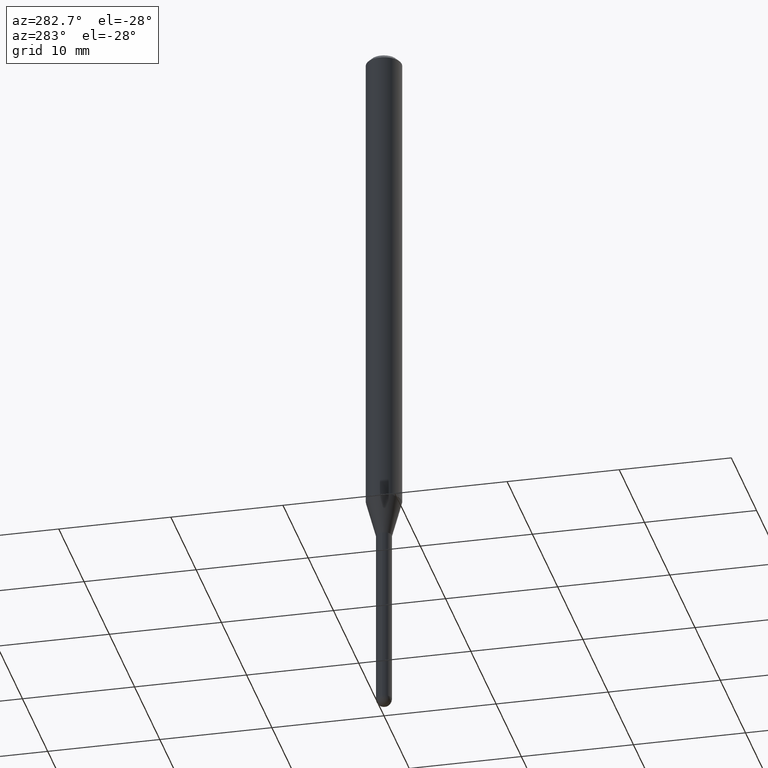
[diagram: clean part render]
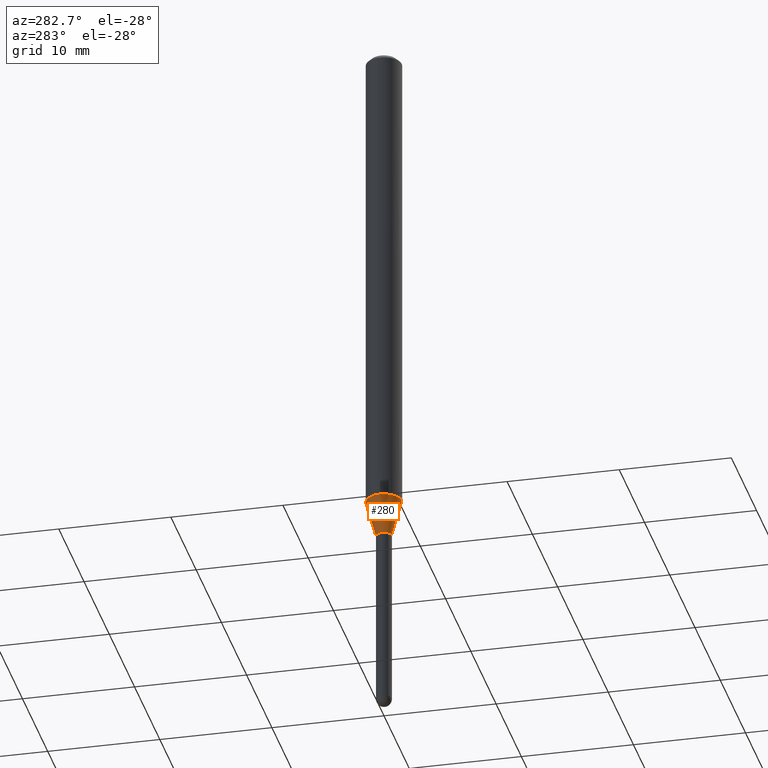
[diagram: same view with one face highlighted and labeled with its STEP entity id]
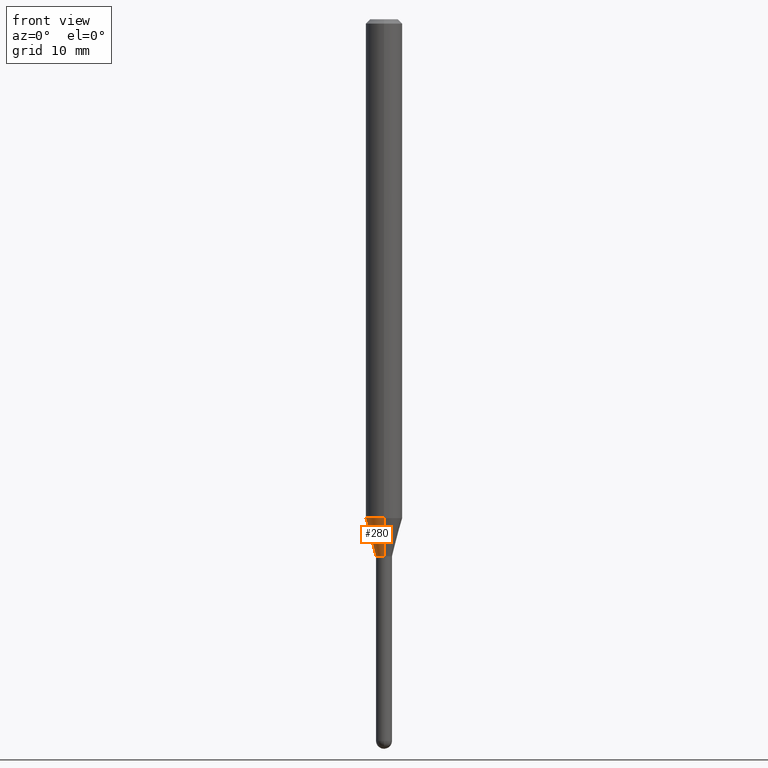
[diagram: same view with one face highlighted and labeled with its STEP entity id]
A machine part, auxiliary view. The second image highlights one B-rep face of the part: STEP entity #280.
A second angle (front view) of the same face is appended — the face is thin or edge-on in the first view.
In plain terms, the highlighted conical surface has half-angle 15 deg.
Its self-contained STEP definition (entity closure, byte-faithful):
#17 = VECTOR ( 'NONE', #446, 39.37007874015748143 ) ;
#18 = LINE ( 'NONE', #286, #52 ) ;
#34 = AXIS2_PLACEMENT_3D ( 'NONE', #437, #399, #39 ) ;
#39 = DIRECTION ( 'NONE',  ( -6.982962677686265922E-15, -1.000000000000000000, 0.000000000000000000 ) ) ;
#49 = DIRECTION ( 'NONE',  ( -6.982962677686265922E-15, -1.000000000000000000, 4.370956789862821150E-15 ) ) ;
#50 = VERTEX_POINT ( 'NONE', #301 ) ;
#52 = VECTOR ( 'NONE', #178, 39.37007874015748854 ) ;
#61 = CONICAL_SURFACE ( 'NONE', #34, 0.02749999999999992034, 0.2617993877991577900 ) ;
#84 = CARTESIAN_POINT ( 'NONE',  ( 4.499652193453970198E-29, -6.424340571078891610E-15, -1.840000000000000080 ) ) ;
#94 = ORIENTED_EDGE ( 'NONE', *, *, #153, .T. ) ;
#117 = ORIENTED_EDGE ( 'NONE', *, *, #157, .T. ) ;
#127 = DIRECTION ( 'NONE',  ( -6.982962677686265922E-15, -1.000000000000000000, 0.000000000000000000 ) ) ;
#140 = DIRECTION ( 'NONE',  ( -2.445463148616288200E-29, 3.491489440803745492E-15, 1.000000000000000000 ) ) ;
#153 = EDGE_CURVE ( 'NONE', #395, #482, #18, .T. ) ;
#155 = CIRCLE ( 'NONE', #271, 0.06250000000000000000 ) ;
#157 = EDGE_CURVE ( 'NONE', #350, #395, #434, .T. ) ;
#178 = DIRECTION ( 'NONE',  ( -1.807323732225381021E-15, -0.2588190451025254579, 0.9659258262890669799 ) ) ;
#189 = CARTESIAN_POINT ( 'NONE',  ( -4.364351673553500570E-16, -0.06250000000000599520, -1.709378221735093017 ) ) ;
#199 = EDGE_CURVE ( 'NONE', #350, #50, #474, .T. ) ;
#271 = AXIS2_PLACEMENT_3D ( 'NONE', #413, #140, #49 ) ;
#276 = FACE_OUTER_BOUND ( 'NONE', #409, .T. ) ;
#280 = ADVANCED_FACE ( 'NONE', ( #276 ), #61, .T. ) ;
#286 = CARTESIAN_POINT ( 'NONE',  ( -1.920314736363267384E-16, -0.02750000000000634576, -1.840000000000000080 ) ) ;
#301 = CARTESIAN_POINT ( 'NONE',  ( 4.440892098501041300E-16, 0.06249999999999401173, -1.709378221735093684 ) ) ;
#321 = CARTESIAN_POINT ( 'NONE',  ( 1.953992523340719502E-16, 0.02749999999999349493, -1.840000000000000080 ) ) ;
#329 = AXIS2_PLACEMENT_3D ( 'NONE', #84, #488, #127 ) ;
#350 = VERTEX_POINT ( 'NONE', #500 ) ;
#371 = EDGE_CURVE ( 'NONE', #50, #482, #155, .T. ) ;
#395 = VERTEX_POINT ( 'NONE', #459 ) ;
#399 = DIRECTION ( 'NONE',  ( -2.445463148616288200E-29, 3.491489440803745492E-15, 1.000000000000000000 ) ) ;
#403 = ORIENTED_EDGE ( 'NONE', *, *, #371, .F. ) ;
#409 = EDGE_LOOP ( 'NONE', ( #485, #117, #94, #403 ) ) ;
#413 = CARTESIAN_POINT ( 'NONE',  ( 4.180221448300412991E-29, -5.968276011527961205E-15, -1.709378221735093462 ) ) ;
#434 = CIRCLE ( 'NONE', #329, 0.02749999999999992034 ) ;
#437 = CARTESIAN_POINT ( 'NONE',  ( 4.499652193453970198E-29, -6.424340571078891610E-15, -1.840000000000000080 ) ) ;
#446 = DIRECTION ( 'NONE',  ( 1.839019923739651986E-15, 0.2588190451025322303, 0.9659258262890650926 ) ) ;
#459 = CARTESIAN_POINT ( 'NONE',  ( -1.920314736363267384E-16, -0.02750000000000634576, -1.840000000000000080 ) ) ;
#474 = LINE ( 'NONE', #321, #17 ) ;
#482 = VERTEX_POINT ( 'NONE', #189 ) ;
#485 = ORIENTED_EDGE ( 'NONE', *, *, #199, .F. ) ;
#488 = DIRECTION ( 'NONE',  ( -2.445463148616288200E-29, 3.491489440803745492E-15, 1.000000000000000000 ) ) ;
#500 = CARTESIAN_POINT ( 'NONE',  ( 3.197442310920882619E-16, 0.02749999999999349493, -1.840000000000000080 ) ) ;